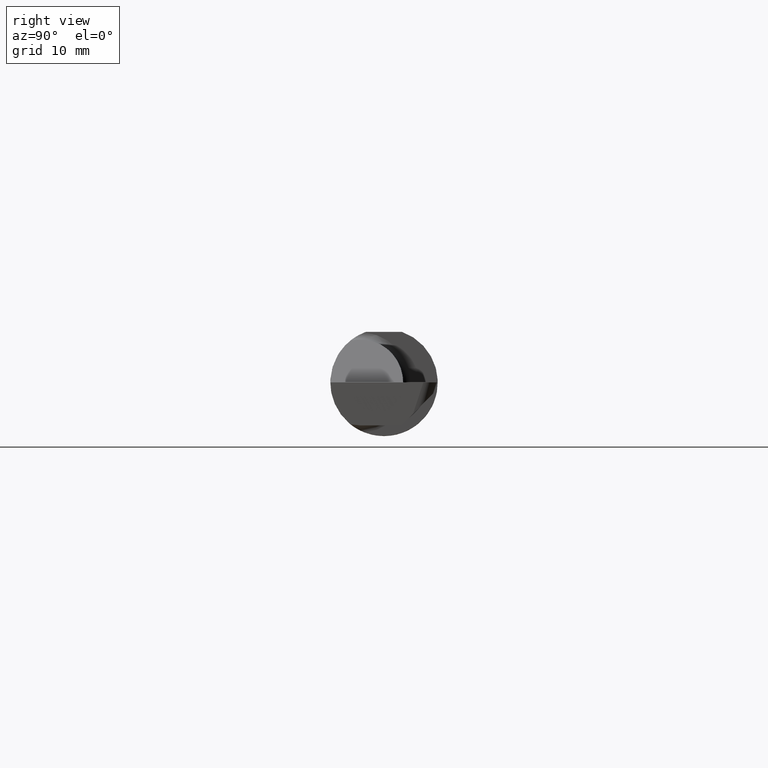
[diagram: clean part render]
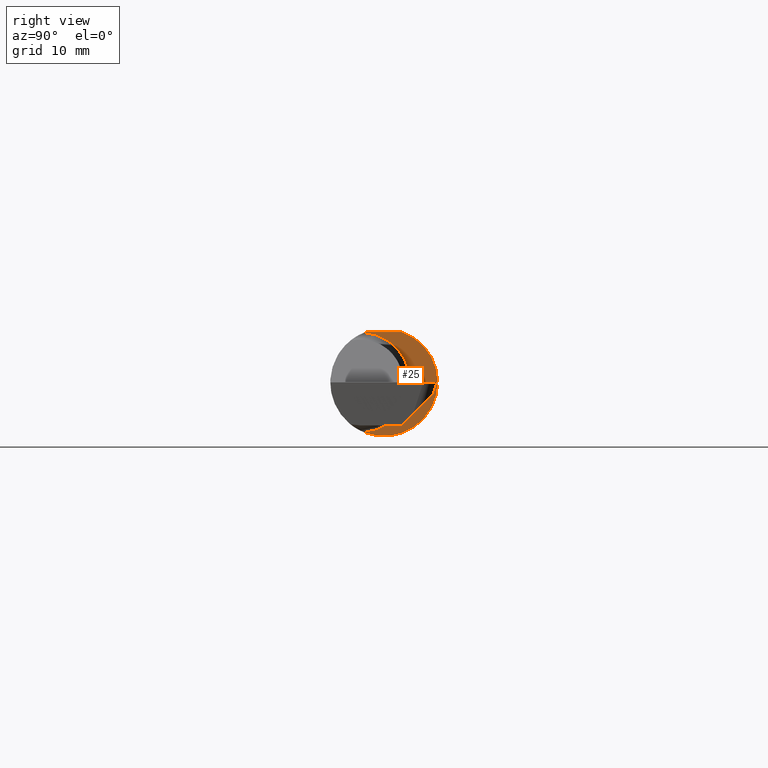
[diagram: same view with one face highlighted and labeled with its STEP entity id]
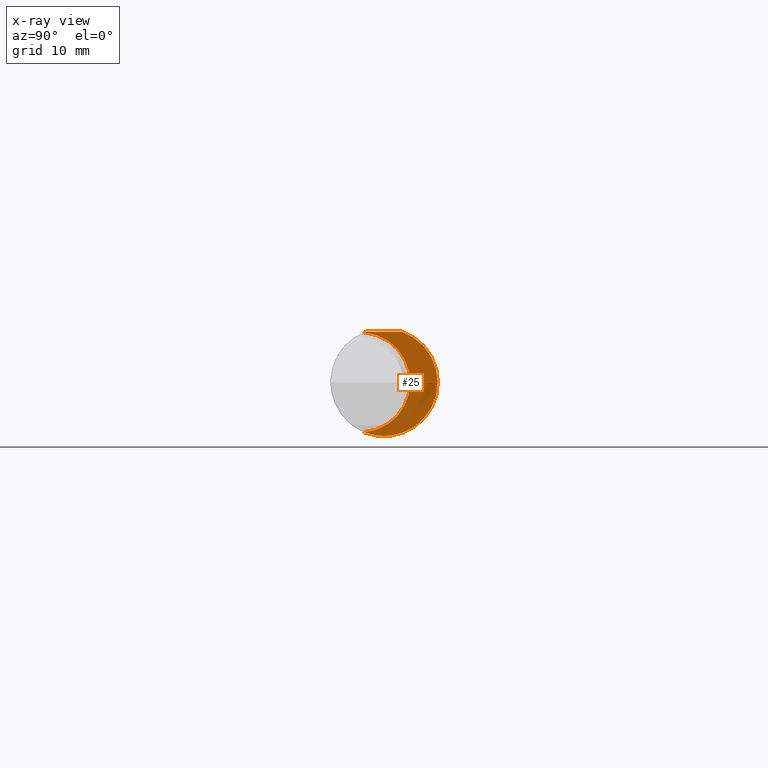
[diagram: x-ray of the same camera — body ghosted, the highlighted face saturated]
A machine part, right view. The second image highlights one B-rep face of the part: STEP entity #25.
The next image is the same camera in x-ray: the body ghosted, the highlighted face saturated — about 28% of this face is hidden behind the body in this view.
In plain terms, the highlighted planar face has unit normal (1, 0, 0).
Its self-contained STEP definition (entity closure, byte-faithful):
#25 = ADVANCED_FACE ( 'NONE', ( #404 ), #676, .T. ) ;
#28 = CARTESIAN_POINT ( 'NONE',  ( 1.450000000000000178, 0.1873499999999997390, 0.1763499999999999235 ) ) ;
#34 = DIRECTION ( 'NONE',  ( 1.000000000000000000, 7.100831337523756508E-17, 0.000000000000000000 ) ) ;
#42 = DIRECTION ( 'NONE',  ( -1.000000000000000000, -7.100831337523756508E-17, -0.000000000000000000 ) ) ;
#49 = VERTEX_POINT ( 'NONE', #81 ) ;
#55 = EDGE_CURVE ( 'NONE', #284, #612, #645, .T. ) ;
#68 = DIRECTION ( 'NONE',  ( -7.100831337523756508E-17, 1.000000000000000000, 0.000000000000000000 ) ) ;
#75 = DIRECTION ( 'NONE',  ( 0.000000000000000000, 1.000000000000000000, 0.000000000000000000 ) ) ;
#76 = VERTEX_POINT ( 'NONE', #257 ) ;
#81 = CARTESIAN_POINT ( 'NONE',  ( 1.450000000000000178, -0.06851976604679066440, 0.1743704796142198643 ) ) ;
#111 = CIRCLE ( 'NONE', #393, 0.1873499999999999888 ) ;
#150 = DIRECTION ( 'NONE',  ( -7.100831337523756508E-17, 1.000000000000000000, 0.000000000000000000 ) ) ;
#159 = ORIENTED_EDGE ( 'NONE', *, *, #567, .T. ) ;
#161 = CARTESIAN_POINT ( 'NONE',  ( 1.450000000000000178, -0.06325108694718287183, 0.1763499999999999235 ) ) ;
#169 = CARTESIAN_POINT ( 'NONE',  ( 1.450000000000000178, 0.000000000000000000, 0.000000000000000000 ) ) ;
#180 = AXIS2_PLACEMENT_3D ( 'NONE', #169, #648, #698 ) ;
#191 = DIRECTION ( 'NONE',  ( 1.000000000000000000, 7.100831337523756508E-17, 0.000000000000000000 ) ) ;
#239 = CIRCLE ( 'NONE', #476, 0.1749999999999999889 ) ;
#257 = CARTESIAN_POINT ( 'NONE',  ( 1.450000000000000178, -0.06851976604679066440, -0.1743704796142198643 ) ) ;
#284 = VERTEX_POINT ( 'NONE', #161 ) ;
#302 = EDGE_CURVE ( 'NONE', #76, #612, #614, .T. ) ;
#333 = CARTESIAN_POINT ( 'NONE',  ( 1.450000000000000178, 0.000000000000000000, 0.000000000000000000 ) ) ;
#336 = VECTOR ( 'NONE', #150, 39.37007874015748143 ) ;
#360 = CARTESIAN_POINT ( 'NONE',  ( 1.450000000000000178, -0.08335000000000004905, 0.000000000000000000 ) ) ;
#367 = AXIS2_PLACEMENT_3D ( 'NONE', #390, #191, #68 ) ;
#390 = CARTESIAN_POINT ( 'NONE',  ( 1.450000000000000178, 0.1873499999999998500, 0.000000000000000000 ) ) ;
#393 = AXIS2_PLACEMENT_3D ( 'NONE', #333, #34, #75 ) ;
#404 = FACE_OUTER_BOUND ( 'NONE', #473, .T. ) ;
#459 = ORIENTED_EDGE ( 'NONE', *, *, #469, .T. ) ;
#469 = EDGE_CURVE ( 'NONE', #284, #49, #111, .T. ) ;
#473 = EDGE_LOOP ( 'NONE', ( #478, #693, #459, #159 ) ) ;
#476 = AXIS2_PLACEMENT_3D ( 'NONE', #360, #42, #707 ) ;
#478 = ORIENTED_EDGE ( 'NONE', *, *, #302, .T. ) ;
#567 = EDGE_CURVE ( 'NONE', #49, #76, #239, .T. ) ;
#592 = CARTESIAN_POINT ( 'NONE',  ( 1.450000000000000178, 0.06325108694718235836, 0.1763499999999999235 ) ) ;
#612 = VERTEX_POINT ( 'NONE', #592 ) ;
#614 = CIRCLE ( 'NONE', #180, 0.1873499999999999888 ) ;
#645 = LINE ( 'NONE', #28, #336 ) ;
#648 = DIRECTION ( 'NONE',  ( 1.000000000000000000, 7.100831337523756508E-17, 0.000000000000000000 ) ) ;
#676 = PLANE ( 'NONE',  #367 ) ;
#693 = ORIENTED_EDGE ( 'NONE', *, *, #55, .F. ) ;
#698 = DIRECTION ( 'NONE',  ( 0.000000000000000000, 1.000000000000000000, 0.000000000000000000 ) ) ;
#707 = DIRECTION ( 'NONE',  ( 0.000000000000000000, -1.000000000000000000, 0.000000000000000000 ) ) ;